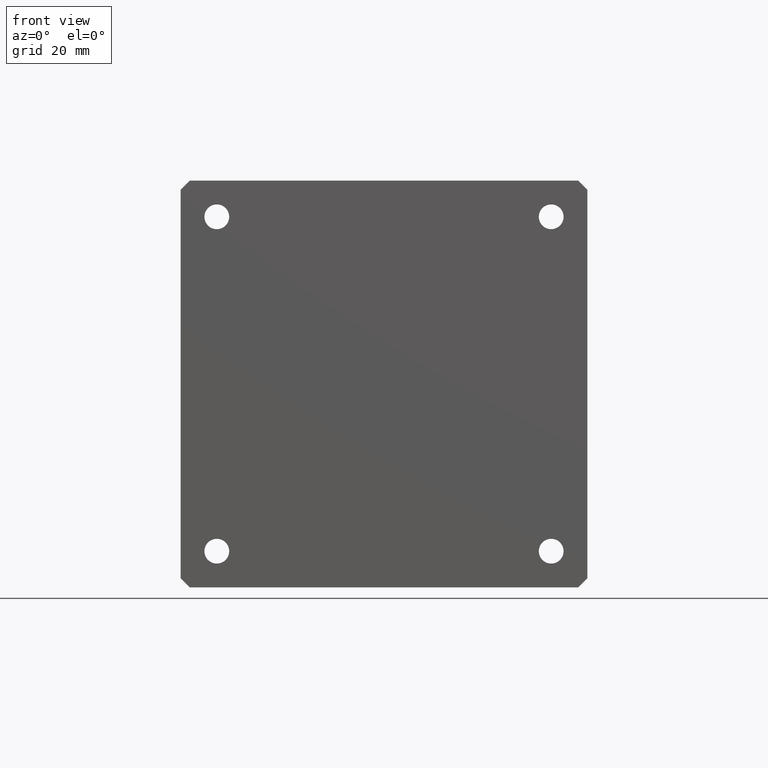
[diagram: clean part render]
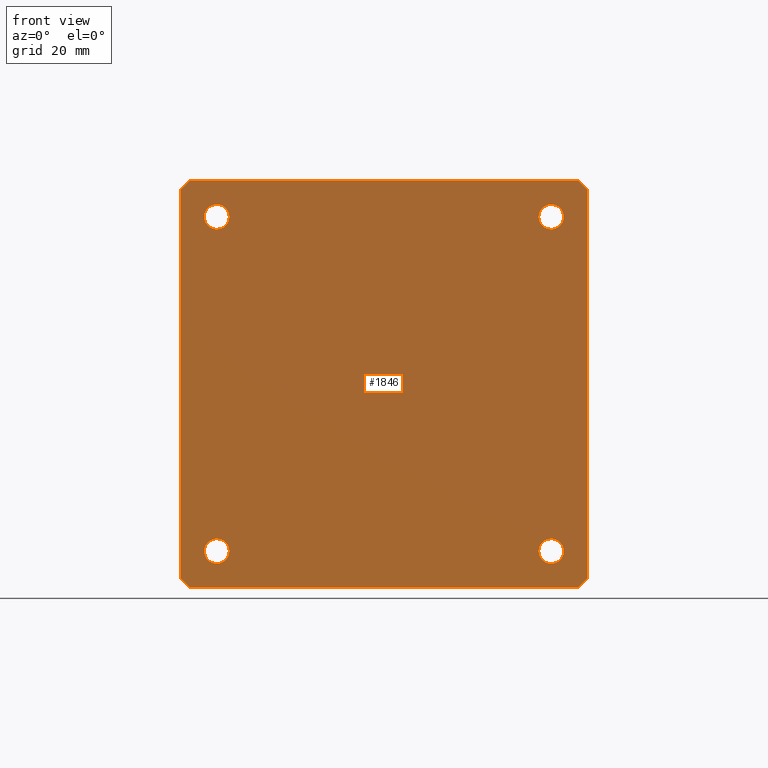
[diagram: same view with one face highlighted and labeled with its STEP entity id]
A machine part, front view. The second image highlights one B-rep face of the part: STEP entity #1846.
In plain terms, the highlighted planar face has unit normal (0, -1, 0).
Its self-contained STEP definition (entity closure, byte-faithful):
#997=CARTESIAN_POINT('',(-3.7E1,1.E1,3.7E1));
#998=DIRECTION('',(0.E0,-1.E0,0.E0));
#999=DIRECTION('',(-1.E0,0.E0,0.E0));
#1000=AXIS2_PLACEMENT_3D('',#997,#998,#999);
#1005=CARTESIAN_POINT('',(-3.7E1,1.E1,3.7E1));
#1006=DIRECTION('',(0.E0,-1.E0,0.E0));
#1007=DIRECTION('',(1.E0,0.E0,0.E0));
#1008=AXIS2_PLACEMENT_3D('',#1005,#1006,#1007);
#1013=CARTESIAN_POINT('',(3.7E1,1.E1,3.7E1));
#1014=DIRECTION('',(0.E0,1.E0,0.E0));
#1015=DIRECTION('',(1.E0,0.E0,0.E0));
#1016=AXIS2_PLACEMENT_3D('',#1013,#1014,#1015);
#1021=CARTESIAN_POINT('',(3.7E1,1.E1,3.7E1));
#1022=DIRECTION('',(0.E0,1.E0,0.E0));
#1023=DIRECTION('',(-1.E0,0.E0,0.E0));
#1024=AXIS2_PLACEMENT_3D('',#1021,#1022,#1023);
#1029=CARTESIAN_POINT('',(-3.7E1,1.E1,-3.7E1));
#1030=DIRECTION('',(0.E0,1.E0,0.E0));
#1031=DIRECTION('',(-1.E0,0.E0,0.E0));
#1032=AXIS2_PLACEMENT_3D('',#1029,#1030,#1031);
#1037=CARTESIAN_POINT('',(-3.7E1,1.E1,-3.7E1));
#1038=DIRECTION('',(0.E0,1.E0,0.E0));
#1039=DIRECTION('',(1.E0,0.E0,0.E0));
#1040=AXIS2_PLACEMENT_3D('',#1037,#1038,#1039);
#1045=CARTESIAN_POINT('',(3.7E1,1.E1,-3.7E1));
#1046=DIRECTION('',(0.E0,-1.E0,0.E0));
#1047=DIRECTION('',(1.E0,0.E0,0.E0));
#1048=AXIS2_PLACEMENT_3D('',#1045,#1046,#1047);
#1053=CARTESIAN_POINT('',(3.7E1,1.E1,-3.7E1));
#1054=DIRECTION('',(0.E0,-1.E0,0.E0));
#1055=DIRECTION('',(-1.E0,0.E0,0.E0));
#1056=AXIS2_PLACEMENT_3D('',#1053,#1054,#1055);
#1061=DIRECTION('',(-7.071067811865E-1,0.E0,7.071067811865E-1));
#1062=VECTOR('',#1061,2.828427124746E0);
#1063=CARTESIAN_POINT('',(-4.3E1,1.E1,-4.5E1));
#1064=LINE('',#1063,#1062);
#1068=DIRECTION('',(-1.E0,0.E0,0.E0));
#1069=VECTOR('',#1068,8.6E1);
#1070=CARTESIAN_POINT('',(4.3E1,1.E1,-4.5E1));
#1071=LINE('',#1070,#1069);
#1075=DIRECTION('',(-7.071067811865E-1,0.E0,-7.071067811865E-1));
#1076=VECTOR('',#1075,2.828427124746E0);
#1077=CARTESIAN_POINT('',(4.5E1,1.E1,-4.3E1));
#1078=LINE('',#1077,#1076);
#1082=DIRECTION('',(0.E0,0.E0,-1.E0));
#1083=VECTOR('',#1082,8.6E1);
#1084=CARTESIAN_POINT('',(4.5E1,1.E1,4.3E1));
#1085=LINE('',#1084,#1083);
#1089=DIRECTION('',(7.071067811865E-1,0.E0,-7.071067811865E-1));
#1090=VECTOR('',#1089,2.828427124746E0);
#1091=CARTESIAN_POINT('',(4.3E1,1.E1,4.5E1));
#1092=LINE('',#1091,#1090);
#1096=DIRECTION('',(1.E0,0.E0,0.E0));
#1097=VECTOR('',#1096,8.6E1);
#1098=CARTESIAN_POINT('',(-4.3E1,1.E1,4.5E1));
#1099=LINE('',#1098,#1097);
#1103=DIRECTION('',(7.071067811865E-1,0.E0,7.071067811865E-1));
#1104=VECTOR('',#1103,2.828427124746E0);
#1105=CARTESIAN_POINT('',(-4.5E1,1.E1,4.3E1));
#1106=LINE('',#1105,#1104);
#1110=DIRECTION('',(0.E0,0.E0,1.E0));
#1111=VECTOR('',#1110,8.6E1);
#1112=CARTESIAN_POINT('',(-4.5E1,1.E1,-4.3E1));
#1113=LINE('',#1112,#1111);
#1219=CARTESIAN_POINT('',(-3.975E1,1.E1,3.7E1));
#1220=CARTESIAN_POINT('',(-3.425E1,1.E1,3.7E1));
#1221=VERTEX_POINT('',#1219);
#1222=VERTEX_POINT('',#1220);
#1231=CARTESIAN_POINT('',(3.975E1,1.E1,3.7E1));
#1233=VERTEX_POINT('',#1231);
#1235=CARTESIAN_POINT('',(3.425E1,1.E1,3.7E1));
#1237=VERTEX_POINT('',#1235);
#1239=CARTESIAN_POINT('',(-3.975E1,1.E1,-3.7E1));
#1241=VERTEX_POINT('',#1239);
#1243=CARTESIAN_POINT('',(-3.425E1,1.E1,-3.7E1));
#1245=VERTEX_POINT('',#1243);
#1247=CARTESIAN_POINT('',(3.975E1,1.E1,-3.7E1));
#1249=VERTEX_POINT('',#1247);
#1251=CARTESIAN_POINT('',(3.425E1,1.E1,-3.7E1));
#1253=VERTEX_POINT('',#1251);
#1259=CARTESIAN_POINT('',(-4.3E1,1.E1,-4.5E1));
#1260=VERTEX_POINT('',#1259);
#1261=CARTESIAN_POINT('',(-4.5E1,1.E1,-4.3E1));
#1262=VERTEX_POINT('',#1261);
#1267=CARTESIAN_POINT('',(4.5E1,1.E1,-4.3E1));
#1268=VERTEX_POINT('',#1267);
#1269=CARTESIAN_POINT('',(4.3E1,1.E1,-4.5E1));
#1270=VERTEX_POINT('',#1269);
#1275=CARTESIAN_POINT('',(4.3E1,1.E1,4.5E1));
#1276=VERTEX_POINT('',#1275);
#1277=CARTESIAN_POINT('',(4.5E1,1.E1,4.3E1));
#1278=VERTEX_POINT('',#1277);
#1283=CARTESIAN_POINT('',(-4.5E1,1.E1,4.3E1));
#1284=VERTEX_POINT('',#1283);
#1285=CARTESIAN_POINT('',(-4.3E1,1.E1,4.5E1));
#1286=VERTEX_POINT('',#1285);
#1801=CARTESIAN_POINT('',(0.E0,1.E1,0.E0));
#1802=DIRECTION('',(0.E0,1.E0,0.E0));
#1803=DIRECTION('',(1.E0,0.E0,0.E0));
#1804=AXIS2_PLACEMENT_3D('',#1801,#1802,#1803);
#1805=PLANE('',#1804);
#1807=ORIENTED_EDGE('',*,*,#1806,.F.);
#1809=ORIENTED_EDGE('',*,*,#1808,.F.);
#1811=ORIENTED_EDGE('',*,*,#1810,.F.);
#1813=ORIENTED_EDGE('',*,*,#1812,.F.);
#1815=ORIENTED_EDGE('',*,*,#1814,.F.);
#1817=ORIENTED_EDGE('',*,*,#1816,.F.);
#1819=ORIENTED_EDGE('',*,*,#1818,.F.);
#1821=ORIENTED_EDGE('',*,*,#1820,.F.);
#1822=EDGE_LOOP('',(#1807,#1809,#1811,#1813,#1815,#1817,#1819,#1821));
#1823=FACE_OUTER_BOUND('',#1822,.F.);
#1825=ORIENTED_EDGE('',*,*,#1824,.T.);
#1827=ORIENTED_EDGE('',*,*,#1826,.T.);
#1828=EDGE_LOOP('',(#1825,#1827));
#1829=FACE_BOUND('',#1828,.F.);
#1831=ORIENTED_EDGE('',*,*,#1830,.T.);
#1833=ORIENTED_EDGE('',*,*,#1832,.T.);
#1834=EDGE_LOOP('',(#1831,#1833));
#1835=FACE_BOUND('',#1834,.F.);
#1837=ORIENTED_EDGE('',*,*,#1836,.F.);
#1839=ORIENTED_EDGE('',*,*,#1838,.F.);
#1840=EDGE_LOOP('',(#1837,#1839));
#1841=FACE_BOUND('',#1840,.F.);
#1842=ORIENTED_EDGE('',*,*,#1781,.F.);
#1843=ORIENTED_EDGE('',*,*,#1795,.F.);
#1844=EDGE_LOOP('',(#1842,#1843));
#1845=FACE_BOUND('',#1844,.F.);
#1001=CIRCLE('',#1000,2.75E0);
#1009=CIRCLE('',#1008,2.75E0);
#1017=CIRCLE('',#1016,2.75E0);
#1025=CIRCLE('',#1024,2.75E0);
#1033=CIRCLE('',#1032,2.75E0);
#1041=CIRCLE('',#1040,2.75E0);
#1049=CIRCLE('',#1048,2.75E0);
#1057=CIRCLE('',#1056,2.75E0);
#1781=EDGE_CURVE('',#1221,#1222,#1001,.T.);
#1795=EDGE_CURVE('',#1222,#1221,#1009,.T.);
#1806=EDGE_CURVE('',#1260,#1262,#1064,.T.);
#1808=EDGE_CURVE('',#1270,#1260,#1071,.T.);
#1810=EDGE_CURVE('',#1268,#1270,#1078,.T.);
#1812=EDGE_CURVE('',#1278,#1268,#1085,.T.);
#1814=EDGE_CURVE('',#1276,#1278,#1092,.T.);
#1816=EDGE_CURVE('',#1286,#1276,#1099,.T.);
#1818=EDGE_CURVE('',#1284,#1286,#1106,.T.);
#1820=EDGE_CURVE('',#1262,#1284,#1113,.T.);
#1824=EDGE_CURVE('',#1233,#1237,#1017,.T.);
#1826=EDGE_CURVE('',#1237,#1233,#1025,.T.);
#1830=EDGE_CURVE('',#1241,#1245,#1033,.T.);
#1832=EDGE_CURVE('',#1245,#1241,#1041,.T.);
#1836=EDGE_CURVE('',#1249,#1253,#1049,.T.);
#1838=EDGE_CURVE('',#1253,#1249,#1057,.T.);
#1846=ADVANCED_FACE('',(#1823,#1829,#1835,#1841,#1845),#1805,.T.);